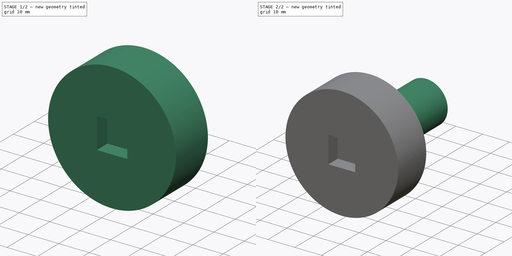
[diagram: build sequence overview — one tinted view per stage of 2, left to right]
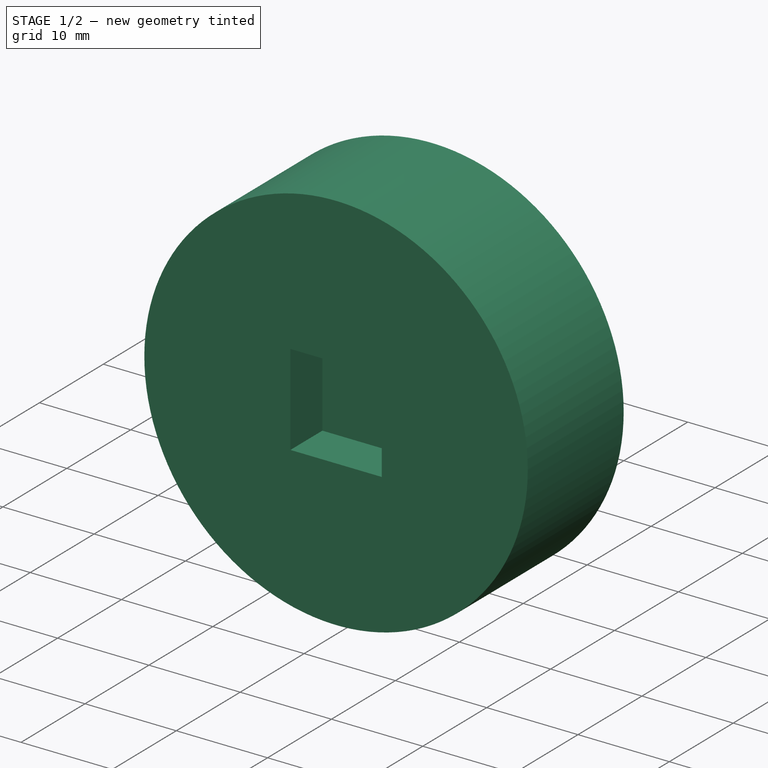
[diagram: stage 1 of 2 — iso view after this stage's code; geometry added in this stage tinted green]
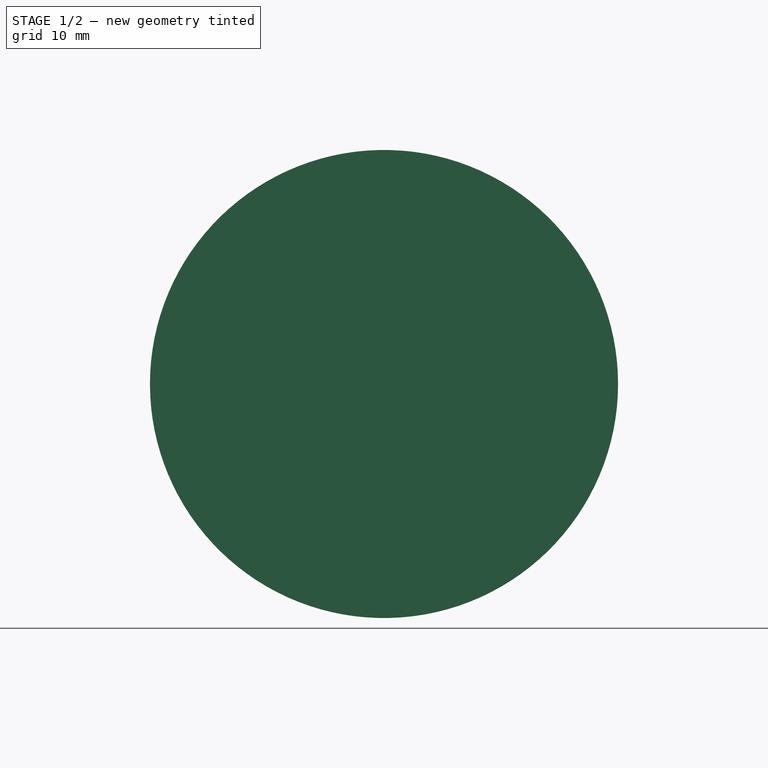
[diagram: stage 1 of 2 — front view after this stage's code; geometry added in this stage tinted green]
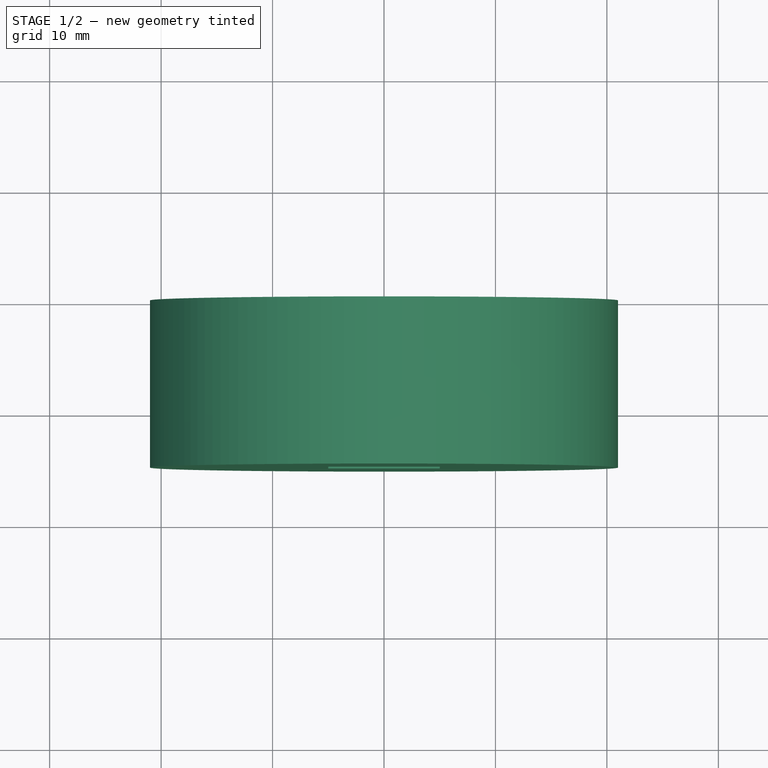
[diagram: stage 1 of 2 — top view after this stage's code; geometry added in this stage tinted green]
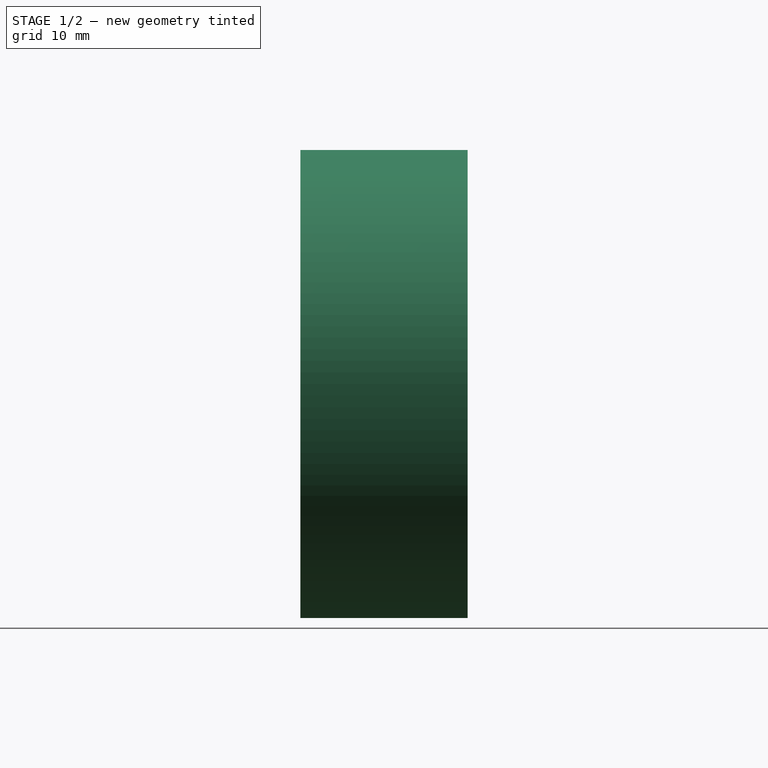
[diagram: stage 1 of 2 — right view after this stage's code; geometry added in this stage tinted green]
FCSTD DOCUMENT  (FreeCAD 0.15R4671 (Git))
Label: broomBearing
License: All rights reserved
LicenseURL: http://en.wikipedia.org/wiki/All_rights_reserved
objects: Drawing::FeatureViewPart×5, Sketcher::SketchObject×3, PartDesign::Pad×2, PartDesign::Pocket×1, Drawing::FeaturePage×1
note: 9 computed .brp shape members not serialized (recipe doc carries the construction recipe); baked Part::Feature solids carry a one-line shape summary decoded from their .brp

FEATURE [Sketcher::SketchObject] Sketch
  Placement = pos=(0,0,0) rot=(1,0,0;1.5708rad)
  sketch-geometry (1):
    g0: Circle CenterX=0 CenterY=0 CenterZ=0 NormalX=0 NormalY=0 NormalZ=1 Radius=21
  constraints (1):
    c: Radius(g0) = 21
FEATURE [PartDesign::Pad] Pad
  Length = 15
  Length2 = 100
  Placement = pos=(0,0,0) rot=(1,0,0;1.5708rad)
  Sketch = -> Sketch
  Type = 0
FEATURE [Sketcher::SketchObject] Sketch001
  Placement = pos=(0,-15,0) rot=(1,0,0;1.5708rad)
  Support = -> Pad [Face3]
  sketch-geometry (4):
    g0: LineSegment StartX=-5 StartY=5 StartZ=0 EndX=5 EndY=5 EndZ=0
    g1: LineSegment StartX=5 StartY=5 StartZ=0 EndX=5 EndY=-5 EndZ=0
    g2: LineSegment StartX=5 StartY=-5 StartZ=0 EndX=-5 EndY=-5 EndZ=0
    g3: LineSegment StartX=-5 StartY=-5 StartZ=0 EndX=-5 EndY=5 EndZ=0
  constraints (12):
    c: Coincident(g0,g1)
    c: Coincident(g1,g2)
    c: Coincident(g2,g3)
    c: Coincident(g3,g0)
    c: Horizontal(g0)
    c: Horizontal(g2)
    c: Vertical(g1)
    c: Vertical(g3)
    c: DistanceX(g0) = 10
    c: DistanceY(g3) = 10
    c: Symmetric(g0,g0,g-2)
    c: Symmetric(g2,g0,g-1)
FEATURE [PartDesign::Pocket] Pocket
  Length = 5
  Placement = pos=(0,0,0) rot=(1,0,0;1.5708rad)
  Sketch = -> Sketch001
  Type = 0
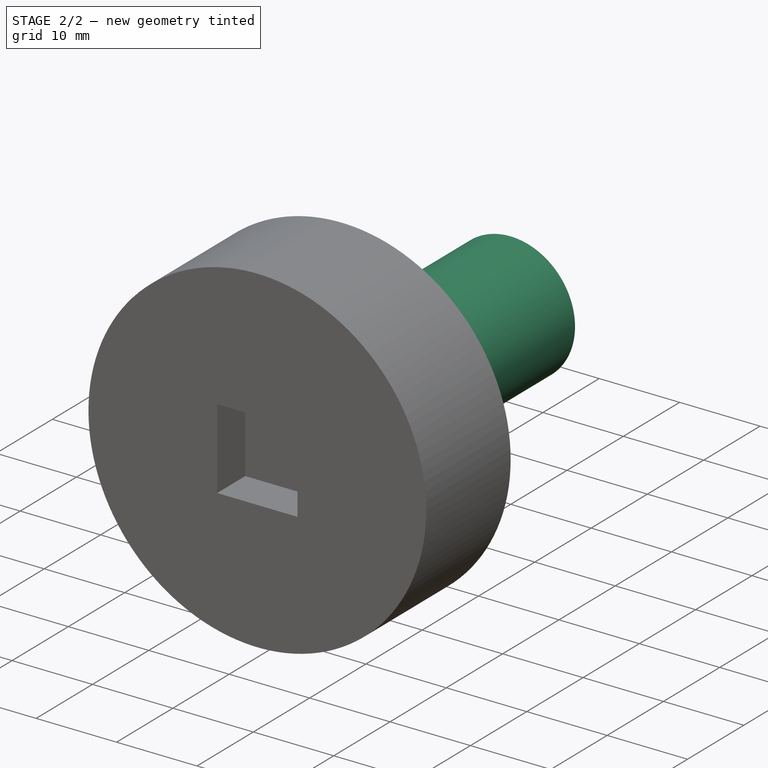
[diagram: stage 2 of 2 — iso view after this stage's code; geometry added in this stage tinted green]
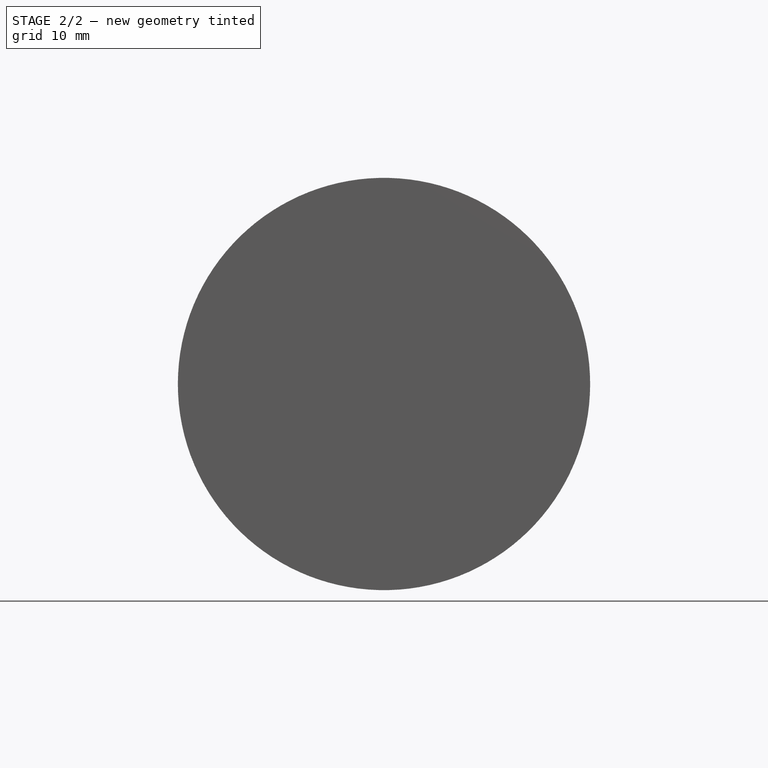
[diagram: stage 2 of 2 — front view after this stage's code; geometry added in this stage tinted green]
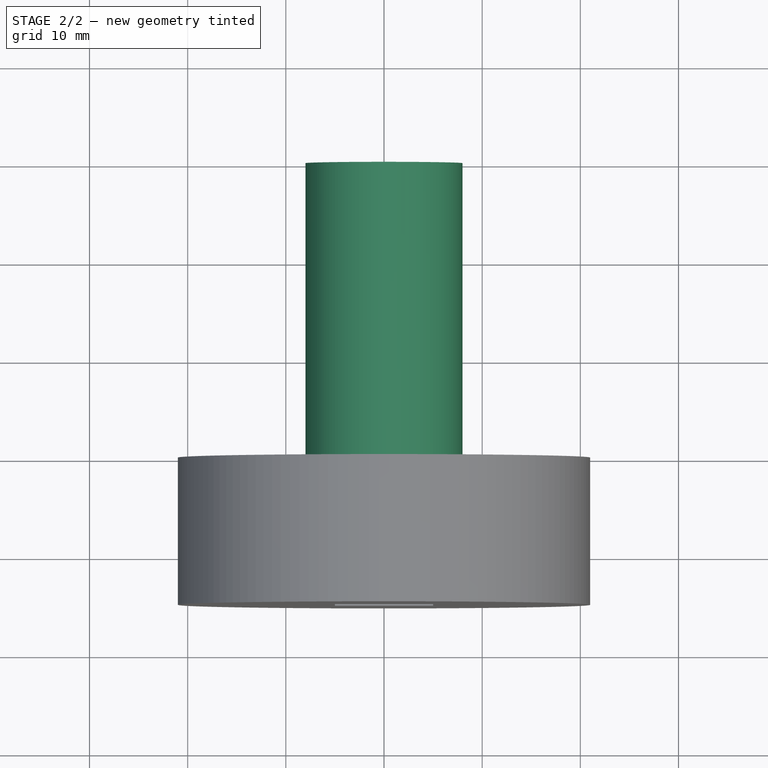
[diagram: stage 2 of 2 — top view after this stage's code; geometry added in this stage tinted green]
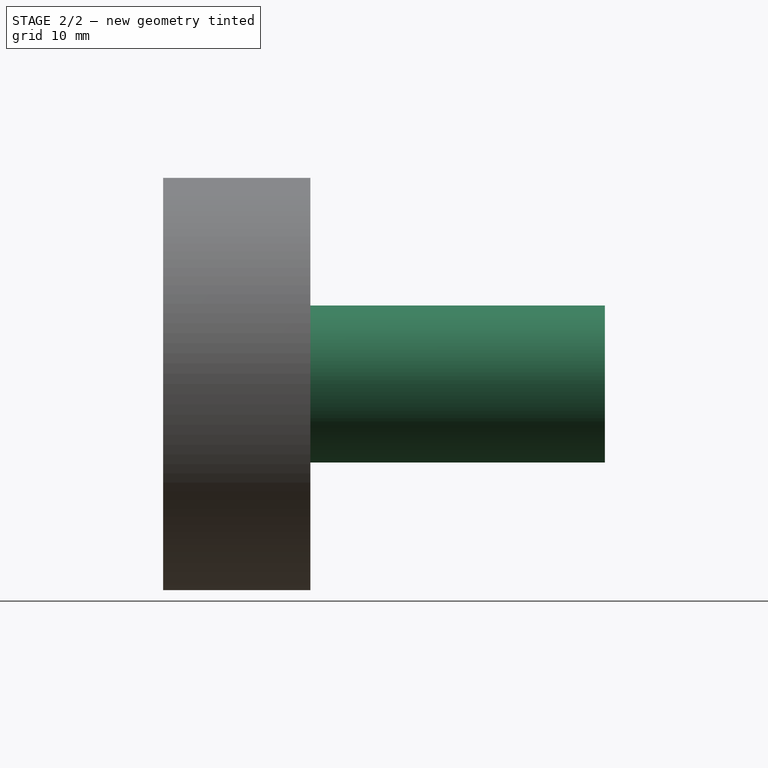
[diagram: stage 2 of 2 — right view after this stage's code; geometry added in this stage tinted green]
FEATURE [Sketcher::SketchObject] Sketch002
  Placement = pos=(0,0,0) rot=(-1,0,0;1.5708rad)
  Support = -> Pocket [Face2]
  sketch-geometry (1):
    g0: Circle CenterX=0 CenterY=0 CenterZ=0 NormalX=0 NormalY=0 NormalZ=1 Radius=8
  constraints (2):
    c: Coincident(g0,g-1)
    c: Radius(g0) = 8
FEATURE [PartDesign::Pad] Pad001
  Length = 30
  Length2 = 100
  Placement = pos=(0,0,0) rot=(1,0,0;1.5708rad)
  Sketch = -> Sketch002
  Type = 0
FEATURE [Drawing::FeatureViewPart] Ortho  label="Ortho_0_0"
  Direction = (1,0,0)
  HiddenWidth = 0.15
  LineWidth = 0.35
  Rotation = -90
  ShowHiddenLines = true
  ShowSmoothLines = false
  Source = -> Pad001
  Tolerance = 0.05
  ViewResult = <blob: 4469 chars omitted>
  Visible = true
  X = 146
  Y = 119.667
FEATURE [Drawing::FeatureViewPart] Ortho001  label="Ortho_1_0"
  Direction = (0,1,0)
  HiddenWidth = 0.15
  LineWidth = 0.35
  Rotation = -90
  ShowHiddenLines = true
  ShowSmoothLines = false
  Source = -> Pad001
  Tolerance = 0.05
  ViewResult = <g id="Ortho_1_0"\n   transform="rotate(-90,231.5,119.667) translate(231.5,119.667) scale(1,1)"\n  >\n<g   stroke="rgb(0, 0, 0)"\n   stroke-width="0.15"\n   stroke-linecap="butt"\n   stroke-linejoin="miter"\n   stroke-dasharray="0.2,0.1"\n   fill="none"\n   transform="scale(1,-1)"\n  >\n<circle cx ="1.9984e-14" cy ="0" r ="21" /><path id= "2" d=" M 5 -5 L 5 5 " />\n<path id= "3" d=" M 5 5 L -5 5 " />\n<path id= "4" d=" M -5 5 L -5 -5 " />\n<path id= "5" d=" M -5 -5 L 5 -5 " />\n<path id= "6" d=" M 5 -5 L 5 5 " />\n<path id= "7" d=" M 5 5 L -5 5 " />\n<path id= "8" d=" M -5 5 L -5 -5 " />\n<path id= "9" d=" M -5 -5 L 5 -5 " />\n</g>\n<g   stroke="rgb(0, 0, 0)"\n   stroke-width="0.35"\n   stroke-linecap="butt"\n   stroke-linejoin="miter"\n   fill="none"\n   transform="scale(1,-1)"\n  >\n<circle cx ="0" cy ="0" r ="21" /><circle cx ="0" cy ="0" r ="8" /><circle cx ="-4.66294e-14" cy ="0" r ="8" /></g>\n</g>
  Visible = true
  X = 231.5
  Y = 119.667
FEATURE [Drawing::FeatureViewPart] Ortho002  label="Ortho_1_1"
  Direction = (0.57735,0.57735,0.57735)
  HiddenWidth = 0.15
  LineWidth = 0.35
  Rotation = 120
  ShowHiddenLines = true
  ShowSmoothLines = false
  Source = -> Pad001
  Tolerance = 0.05
  ViewResult = <blob: 2416 chars omitted>
  Visible = true
  X = 226.197
  Y = 51.2715
FEATURE [Drawing::FeatureViewPart] Ortho003  label="Ortho_-1_1"
  Direction = (0.57735,-0.57735,0.57735)
  HiddenWidth = 0.15
  LineWidth = 0.35
  Rotation = 60
  ShowHiddenLines = true
  ShowSmoothLines = false
  Source = -> Pad001
  Tolerance = 0.05
  ViewResult = <blob: 2817 chars omitted>
  Visible = true
  X = 70.1967
  Y = 57.3952
FEATURE [Drawing::FeatureViewPart] Ortho005  label="Ortho_-1_0"
  Direction = (0,-1,0)
  HiddenWidth = 0.15
  LineWidth = 0.35
  Rotation = 90
  ShowHiddenLines = true
  ShowSmoothLines = false
  Source = -> Pad001
  Tolerance = 0.05
  ViewResult = <g id="Ortho_-1_0"\n   transform="rotate(90,75.5,119.667) translate(75.5,119.667) scale(1,1)"\n  >\n<g   stroke="rgb(0, 0, 0)"\n   stroke-width="0.15"\n   stroke-linecap="butt"\n   stroke-linejoin="miter"\n   stroke-dasharray="0.2,0.1"\n   fill="none"\n   transform="scale(1,-1)"\n  >\n<circle cx ="0" cy ="0" r ="21" /><circle cx ="0" cy ="0" r ="8" /><circle cx ="4.66294e-14" cy ="0" r ="8" /><path id= "4" d=" M 5 5 L 5 -5 " />\n<path id= "5" d=" M 5 -5 L -5 -5 " />\n</g>\n<g   stroke="rgb(0, 0, 0)"\n   stroke-width="0.35"\n   stroke-linecap="butt"\n   stroke-linejoin="miter"\n   fill="none"\n   transform="scale(1,-1)"\n  >\n<circle cx ="-1.9984e-14" cy ="0" r ="21" /><path id= "2" d=" M -5 -5 L -5 5 " />\n<path id= "3" d=" M -5 5 L 5 5 " />\n<path id= "4" d=" M 5 5 L 5 -5 " />\n<path id= "5" d=" M 5 -5 L -5 -5 " />\n<path id= "6" d=" M -5 -5 L -5 5 " />\n<path id= "7" d=" M -5 5 L 5 5 " />\n</g>\n</g>
  Visible = true
  X = 75.5
  Y = 119.667
FEATURE [Drawing::FeaturePage] Page
  EditableTexts = Siqueira | Siqueira | Pindí | Drawing | Bearing to Broom | 0011 | 2015-06-21
  Group = -> [Ortho,Ortho001,Ortho002,Ortho003,Ortho005]
  Template = <path>
note: 1 file-system path scrubbed to <path> (originals preserved in the JSON sidecar)
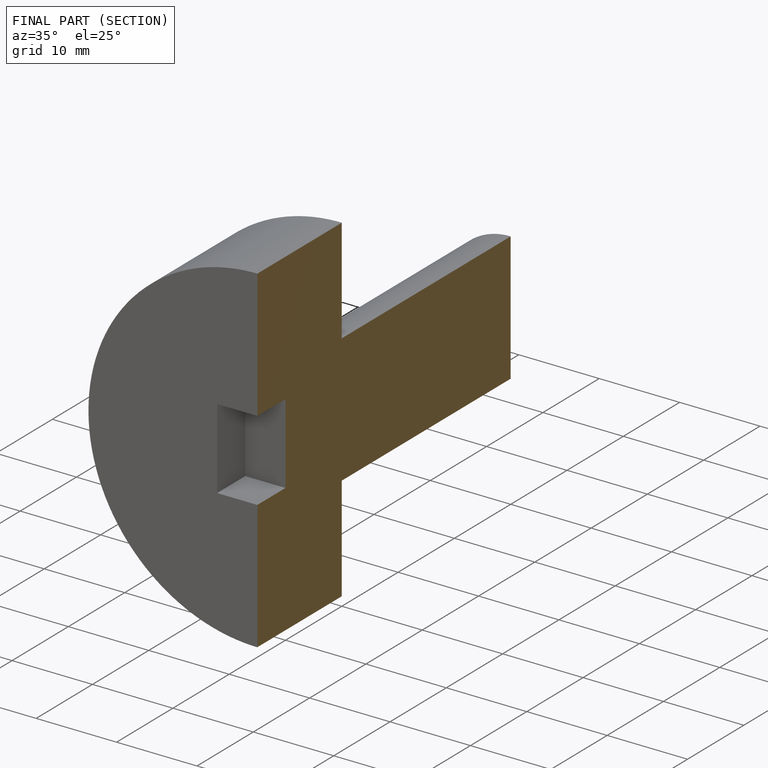
[diagram: finished part — half-section view (interior)]
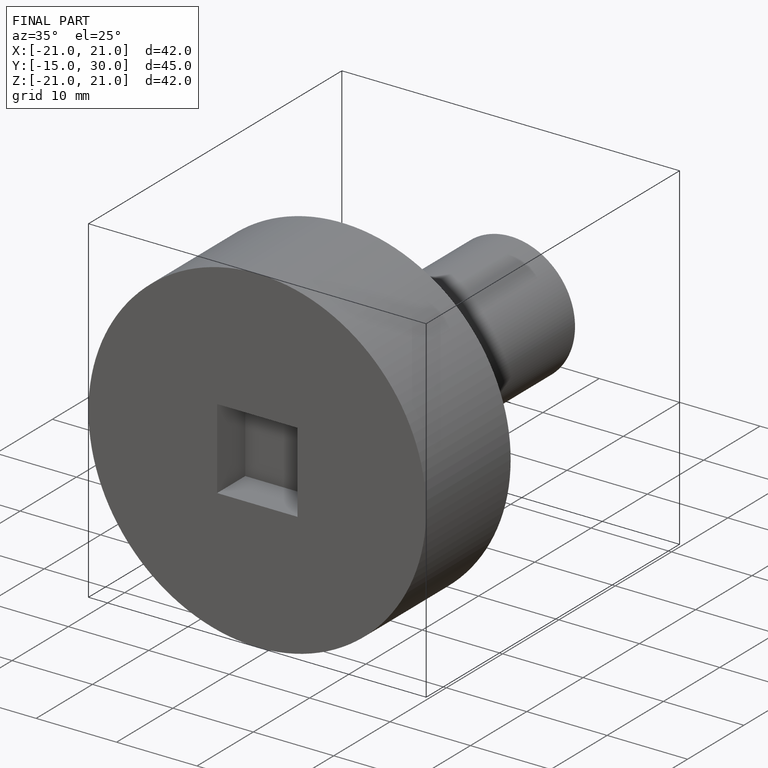
[diagram: finished part — iso view with bounding-box wireframe]
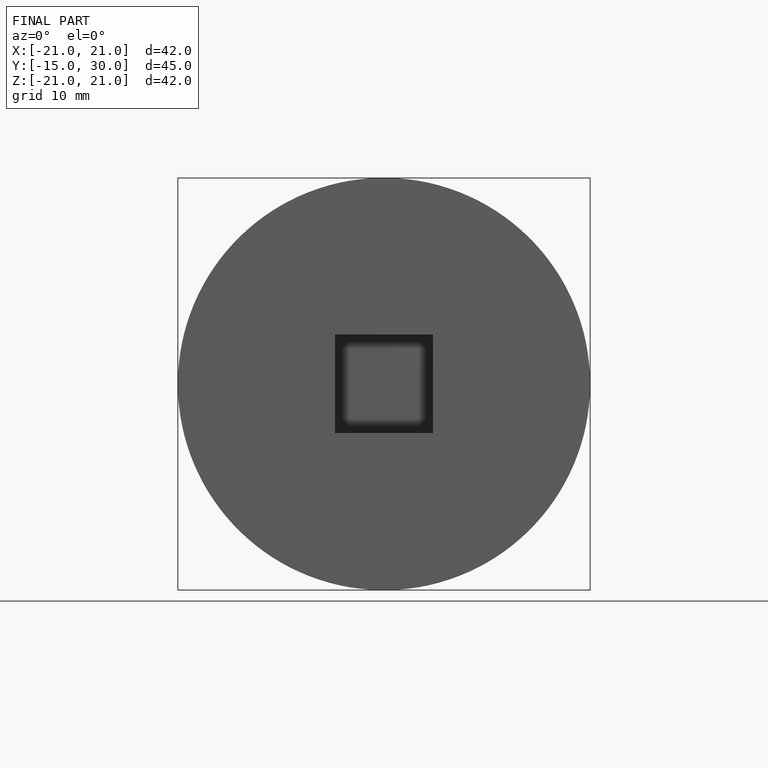
[diagram: finished part — front view with bounding-box wireframe]
